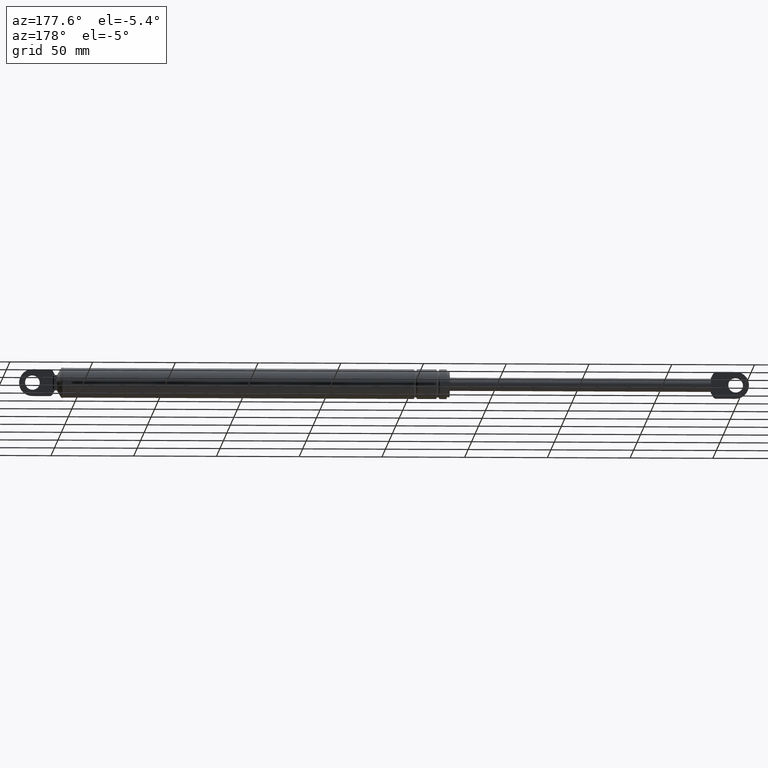
[diagram: clean part render]
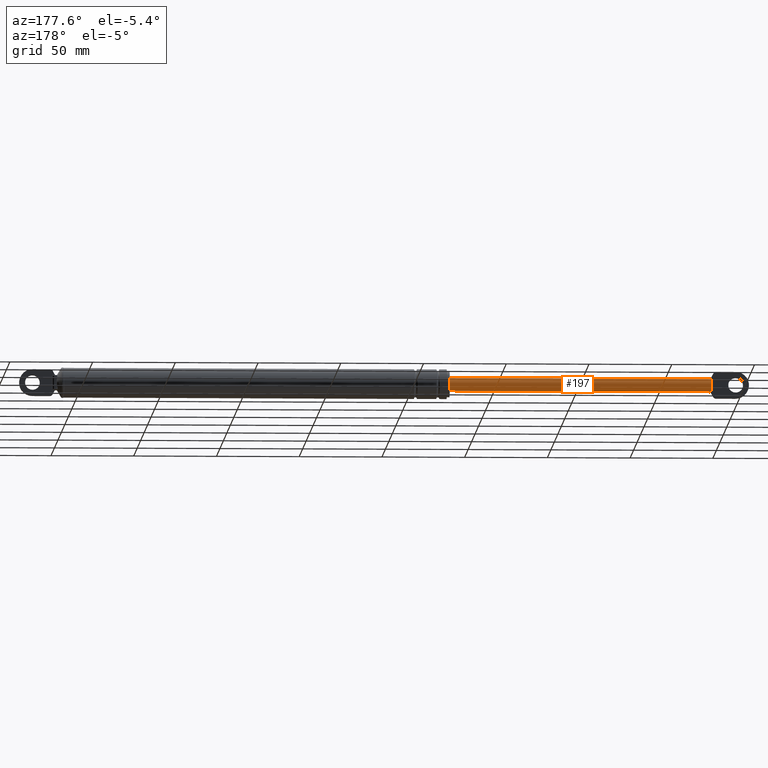
[diagram: same view with one face highlighted and labeled with its STEP entity id]
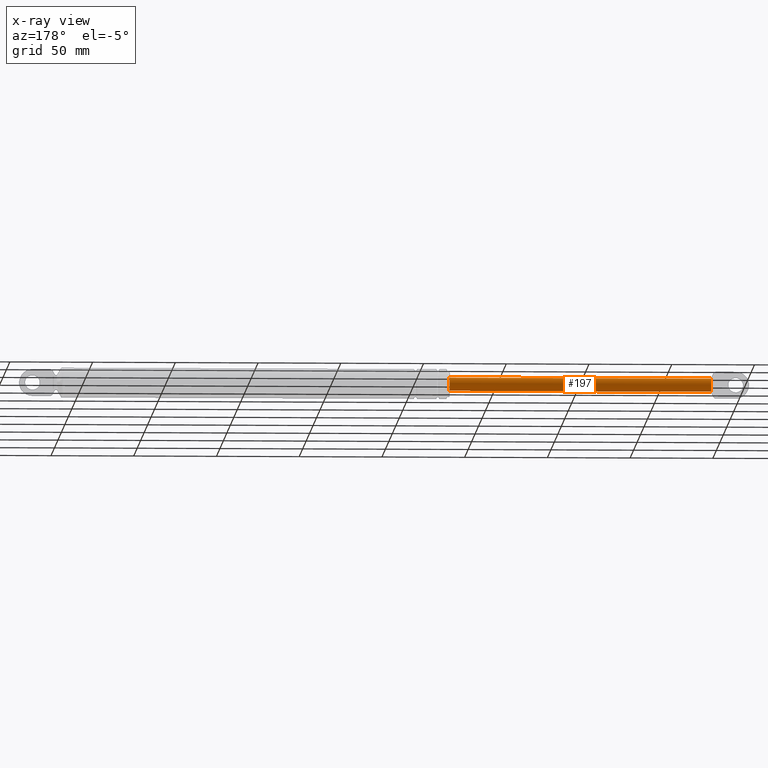
[diagram: x-ray of the same camera — body ghosted, the highlighted face saturated]
A machine part, auxiliary view. The second image highlights one B-rep face of the part: STEP entity #197.
The next image is the same camera in x-ray: the body ghosted, the highlighted face saturated — about 0% of this face is hidden behind the body in this view.
In plain terms, the highlighted cylindrical surface (edge-blend (fillet) strip) has radius 4 mm, axis along (1, 0, 0).
Its self-contained STEP definition (entity closure, byte-faithful):
#197=ADVANCED_FACE('',(#1061),#1060,.T.);
#1060=CYLINDRICAL_SURFACE('',#1835,4.00000000000E+000);
#1061=FACE_OUTER_BOUND('',#1836,.T.);
#1832=CARTESIAN_POINT('',(0.00000000000E+000,0.00000000000E+000,2.11039985953E+002));
#1833=DIRECTION('',(1.00000000000E+000,-0.00000000000E+000,-0.00000000000E+000));
#1834=DIRECTION('',(-0.00000000000E+000,-0.00000000000E+000,-1.00000000000E+000));
#1835=AXIS2_PLACEMENT_3D('',#1832,#1833,#1834);
#1836=EDGE_LOOP('',(#2260,#2261,#2262,#2263,#2264,#2265));
#2260=ORIENTED_EDGE('',*,*,#2480,.T.);
#2261=ORIENTED_EDGE('',*,*,#2490,.F.);
#2262=ORIENTED_EDGE('',*,*,#2465,.F.);
#2263=ORIENTED_EDGE('',*,*,#2461,.F.);
#2264=ORIENTED_EDGE('',*,*,#2471,.F.);
#2265=ORIENTED_EDGE('',*,*,#2491,.T.);
#2461=EDGE_CURVE('',#3688,#3689,#3696,.T.);
#2465=EDGE_CURVE('',#3689,#3723,#3724,.T.);
#2471=EDGE_CURVE('',#3755,#3688,#3762,.T.);
#2480=EDGE_CURVE('',#3815,#3814,#3822,.T.);
#2490=EDGE_CURVE('',#3723,#3814,#3888,.T.);
#2491=EDGE_CURVE('',#3755,#3815,#3894,.T.);
#3688=VERTEX_POINT('',#4700);
#3689=VERTEX_POINT('',#4701);
#3696=CIRCLE('',#4708,4.00000000000E+000);
#3723=VERTEX_POINT('',#4722);
#3724=CIRCLE('',#4726,4.00000000000E+000);
#3755=VERTEX_POINT('',#4741);
#3762=CIRCLE('',#4749,4.00000000000E+000);
#3814=VERTEX_POINT('',#4777);
#3815=VERTEX_POINT('',#4778);
#3822=CIRCLE('',#4786,4.00000000000E+000);
#3888=(BOUNDED_CURVE() B_SPLINE_CURVE(1,(#4826,#4827),.UNSPECIFIED.,.F.,.F.) B_SPLINE_CURVE_WITH_KNOTS((2,2),(5.61797751113E-002,9.43820224718E-001),.UNSPECIFIED.) CURVE() GEOMETRIC_REPRESENTATION_ITEM() RATIONAL_B_SPLINE_CURVE((1.00000000000E+000,1.00000000000E+000)) REPRESENTATION_ITEM('') );
#3894=(BOUNDED_CURVE() B_SPLINE_CURVE(1,(#4828,#4829),.UNSPECIFIED.,.F.,.F.) B_SPLINE_CURVE_WITH_KNOTS((2,2),(5.61797752809E-002,9.43820224719E-001),.UNSPECIFIED.) CURVE() GEOMETRIC_REPRESENTATION_ITEM() RATIONAL_B_SPLINE_CURVE((7.50000000000E-001,7.50000000000E-001)) REPRESENTATION_ITEM('') );
#4700=CARTESIAN_POINT('',(1.38160986636E+001,1.60000000000E+000,2.14706046509E+002));
#4701=CARTESIAN_POINT('',(1.38160986636E+001,1.60000000000E+000,2.07373925397E+002));
#4705=CARTESIAN_POINT('',(1.38160986636E+001,0.00000000000E+000,2.11039985953E+002));
#4706=DIRECTION('',(-1.00000000000E+000,0.00000000000E+000,0.00000000000E+000));
#4707=DIRECTION('',(-0.00000000000E+000,-0.00000000000E+000,-1.00000000000E+000));
#4708=AXIS2_PLACEMENT_3D('',#4705,#4706,#4707);
#4722=CARTESIAN_POINT('',(1.38160986636E+001,1.20898364185E-013,2.07039985953E+002));
#4723=CARTESIAN_POINT('',(1.38160986636E+001,0.00000000000E+000,2.11039985953E+002));
#4724=DIRECTION('',(-1.00000000000E+000,0.00000000000E+000,0.00000000000E+000));
#4725=DIRECTION('',(-0.00000000000E+000,4.00000000000E-001,-9.16515138991E-001));
#4726=AXIS2_PLACEMENT_3D('',#4723,#4724,#4725);
#4741=CARTESIAN_POINT('',(1.38160986636E+001,5.49543672780E-007,2.15039985953E+002));
#4746=CARTESIAN_POINT('',(1.38160986636E+001,0.00000000000E+000,2.11039985953E+002));
#4747=DIRECTION('',(-1.00000000000E+000,0.00000000000E+000,0.00000000000E+000));
#4748=DIRECTION('',(-0.00000000000E+000,-0.00000000000E+000,-1.00000000000E+000));
#4749=AXIS2_PLACEMENT_3D('',#4746,#4747,#4748);
#4777=CARTESIAN_POINT('',(1.71816098664E+002,4.44089209850E-016,2.07039985953E+002));
#4778=CARTESIAN_POINT('',(1.71816098664E+002,0.00000000000E+000,2.15039985953E+002));
#4783=CARTESIAN_POINT('',(1.71816098664E+002,0.00000000000E+000,2.11039985953E+002));
#4784=DIRECTION('',(-1.00000000000E+000,0.00000000000E+000,0.00000000000E+000));
#4785=DIRECTION('',(0.00000000000E+000,-1.22460635382E-016,1.00000000000E+000));
#4786=AXIS2_PLACEMENT_3D('',#4783,#4784,#4785);
#4826=CARTESIAN_POINT('',(1.38160986334E+001,0.00000000000E+000,2.07039985953E+002));
#4827=CARTESIAN_POINT('',(1.71816098663E+002,0.00000000000E+000,2.07039985953E+002));
#4828=CARTESIAN_POINT('',(1.38160986636E+001,-1.48029736617E-016,2.15039985953E+002));
#4829=CARTESIAN_POINT('',(1.71816098664E+002,-1.48029736617E-016,2.15039985953E+002));